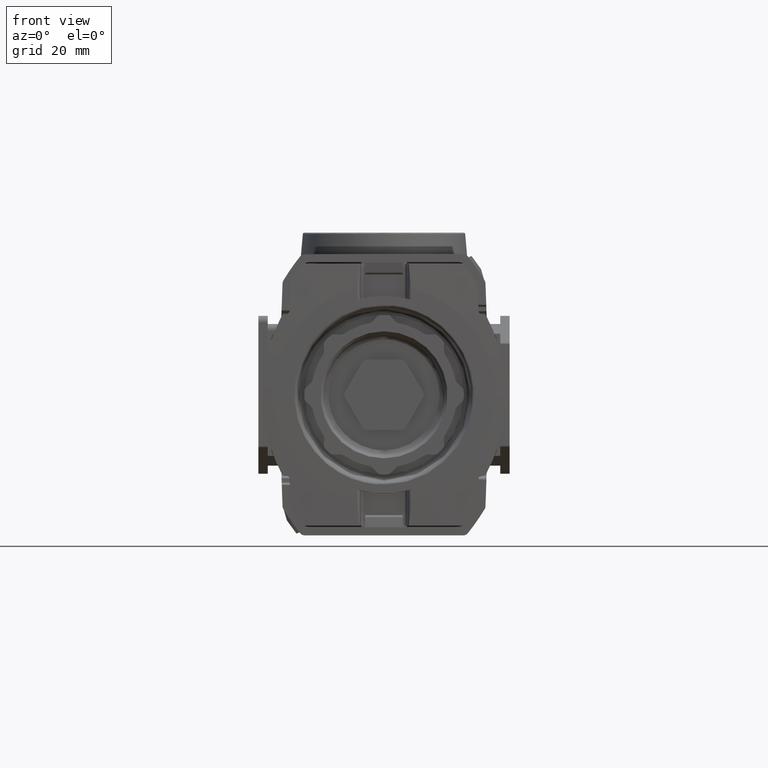
[diagram: clean part render]
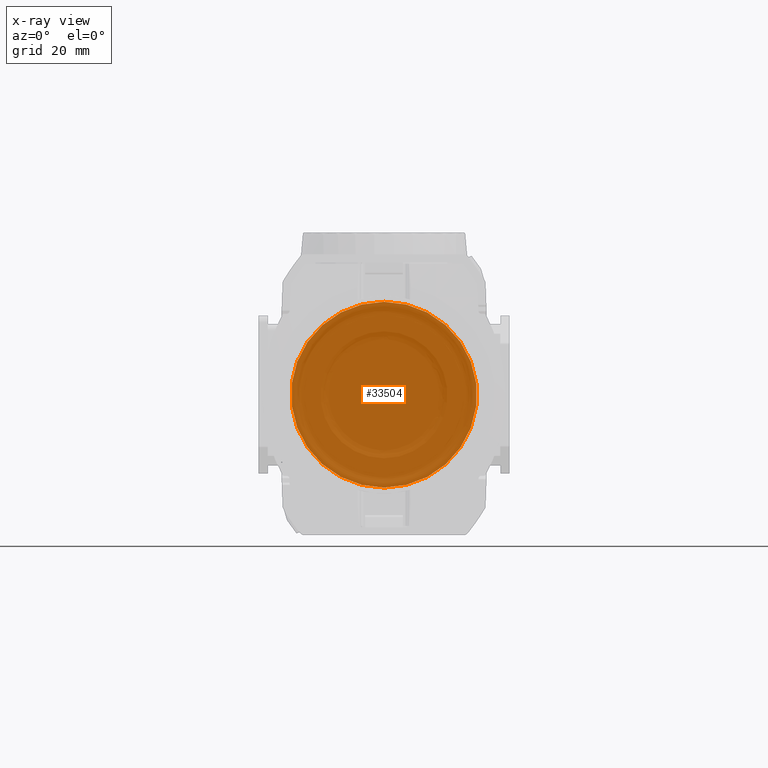
[diagram: x-ray — body ghosted, one internal face saturated and labeled with its STEP entity id]
A machine part, front view, then the same camera in x-ray: the body is ghosted and one INTERNAL B-rep face — a face not visible from any outside direction — is saturated and labeled: STEP entity #33504.
In plain terms, the highlighted planar face has unit normal (0, 1, 0).
Its self-contained STEP definition (entity closure, byte-faithful):
#2920 = CIRCLE ( 'NONE', #12552, 0.6767716535433071501 ) ;
#6201 = PLANE ( 'NONE',  #33648 ) ;
#11051 = AXIS2_PLACEMENT_3D ( 'NONE', #20209, #65164, #19099 ) ;
#12552 = AXIS2_PLACEMENT_3D ( 'NONE', #40885, #34488, #34118 ) ;
#16135 = ORIENTED_EDGE ( 'NONE', *, *, #39848, .T. ) ;
#17544 = FACE_OUTER_BOUND ( 'NONE', #56663, .T. ) ;
#19099 = DIRECTION ( 'NONE',  ( 0.000000000000000000, 0.000000000000000000, 1.000000000000000000 ) ) ;
#20209 = CARTESIAN_POINT ( 'NONE',  ( 0.000000000000000000, 2.033464566929133799, 0.000000000000000000 ) ) ;
#23180 = DIRECTION ( 'NONE',  ( 0.000000000000000000, 1.000000000000000000, 0.000000000000000000 ) ) ;
#24303 = CIRCLE ( 'NONE', #11051, 0.6767716535433071501 ) ;
#24444 = CARTESIAN_POINT ( 'NONE',  ( 8.288062392654725684E-17, 2.033464566929133799, -0.6767716535433071501 ) ) ;
#33504 = ADVANCED_FACE ( 'NONE', ( #17544 ), #6201, .T. ) ;
#33648 = AXIS2_PLACEMENT_3D ( 'NONE', #52637, #23180, #34143 ) ;
#34118 = DIRECTION ( 'NONE',  ( 0.000000000000000000, 0.000000000000000000, 1.000000000000000000 ) ) ;
#34143 = DIRECTION ( 'NONE',  ( 0.000000000000000000, -0.000000000000000000, 1.000000000000000000 ) ) ;
#34488 = DIRECTION ( 'NONE',  ( -0.000000000000000000, 1.000000000000000000, 0.000000000000000000 ) ) ;
#39848 = EDGE_CURVE ( 'NONE', #41540, #61147, #24303, .T. ) ;
#40885 = CARTESIAN_POINT ( 'NONE',  ( 0.000000000000000000, 2.033464566929133799, 0.000000000000000000 ) ) ;
#41540 = VERTEX_POINT ( 'NONE', #24444 ) ;
#42376 = EDGE_CURVE ( 'NONE', #61147, #41540, #2920, .T. ) ;
#44553 = CARTESIAN_POINT ( 'NONE',  ( 0.000000000000000000, 2.033464566929133799, 0.6767716535433071501 ) ) ;
#52637 = CARTESIAN_POINT ( 'NONE',  ( 0.6767716535433071501, 2.033464566929133799, 0.000000000000000000 ) ) ;
#56663 = EDGE_LOOP ( 'NONE', ( #66171, #16135 ) ) ;
#61147 = VERTEX_POINT ( 'NONE', #44553 ) ;
#65164 = DIRECTION ( 'NONE',  ( -0.000000000000000000, 1.000000000000000000, 0.000000000000000000 ) ) ;
#66171 = ORIENTED_EDGE ( 'NONE', *, *, #42376, .T. ) ;